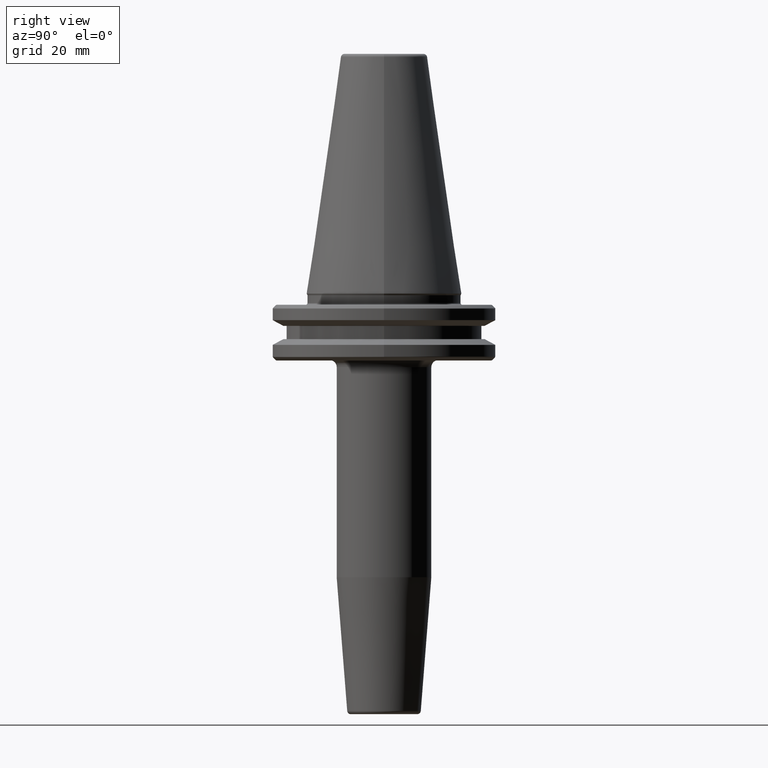
[diagram: clean part render]
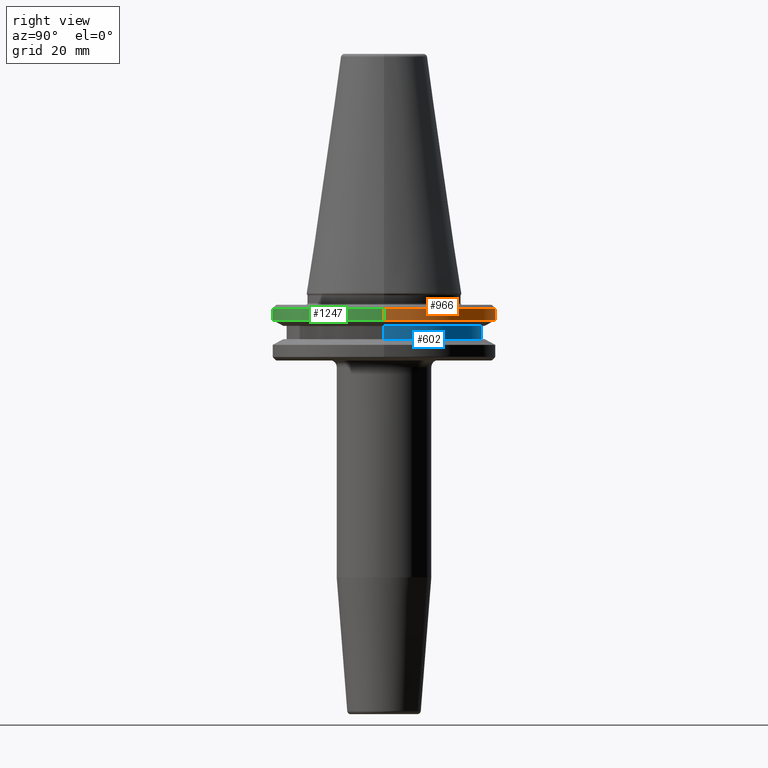
[diagram: same view with three faces highlighted in distinct colors, each labeled with its STEP entity id]
A machine part, right view with three faces highlighted in distinct colors.
Their STEP definitions:

[orange] entity #966 — the highlighted cylindrical surface (partial cylindrical patch) has radius 31.75 mm, axis along (-0, -0, 1).
#32 = CYLINDRICAL_SURFACE ( 'NONE', #369, 31.75000000000000000 ) ;
#98 = DIRECTION ( 'NONE',  ( 1.000000000000000000, 0.0000000000000000000, 0.0000000000000000000 ) ) ;
#104 = DIRECTION ( 'NONE',  ( -0.0000000000000000000, -0.0000000000000000000, 1.000000000000000000 ) ) ;
#105 = CARTESIAN_POINT ( 'NONE',  ( 0.0000000000000000000, 0.0000000000000000000, -4.365685424949250000 ) ) ;
#152 = LINE ( 'NONE', #905, #744 ) ;
#202 = DIRECTION ( 'NONE',  ( 1.000000000000000000, 0.0000000000000000000, 0.0000000000000000000 ) ) ;
#203 = DIRECTION ( 'NONE',  ( 1.000000000000000000, 0.0000000000000000000, 0.0000000000000000000 ) ) ;
#226 = CARTESIAN_POINT ( 'NONE',  ( -31.75000000000000000, 3.888253587292846500E-015, -7.578163357943284800 ) ) ;
#258 = CARTESIAN_POINT ( 'NONE',  ( 0.0000000000000000000, 0.0000000000000000000, 113.5216080541959500 ) ) ;
#266 = LINE ( 'NONE', #623, #1228 ) ;
#276 = EDGE_CURVE ( 'NONE', #390, #1230, #266, .T. ) ;
#291 = ORIENTED_EDGE ( 'NONE', *, *, #756, .F. ) ;
#328 = VERTEX_POINT ( 'NONE', #577 ) ;
#330 = DIRECTION ( 'NONE',  ( -0.0000000000000000000, -0.0000000000000000000, 1.000000000000000000 ) ) ;
#331 = ORIENTED_EDGE ( 'NONE', *, *, #830, .F. ) ;
#369 = AXIS2_PLACEMENT_3D ( 'NONE', #258, #104, #202 ) ;
#390 = VERTEX_POINT ( 'NONE', #226 ) ;
#436 = VERTEX_POINT ( 'NONE', #921 ) ;
#489 = EDGE_CURVE ( 'NONE', #328, #390, #591, .T. ) ;
#540 = CARTESIAN_POINT ( 'NONE',  ( -31.75000000000000000, 3.888253587292846500E-015, -4.365685424949250000 ) ) ;
#577 = CARTESIAN_POINT ( 'NONE',  ( 31.75000000000000000, 0.0000000000000000000, -7.578163357943284800 ) ) ;
#578 = ORIENTED_EDGE ( 'NONE', *, *, #276, .T. ) ;
#591 = CIRCLE ( 'NONE', #1042, 31.75000000000000000 ) ;
#598 = CARTESIAN_POINT ( 'NONE',  ( 0.0000000000000000000, 0.0000000000000000000, -7.578163357943284800 ) ) ;
#623 = CARTESIAN_POINT ( 'NONE',  ( -31.75000000000000000, 3.888253587292846500E-015, 113.5216080541959500 ) ) ;
#694 = DIRECTION ( 'NONE',  ( -0.0000000000000000000, -0.0000000000000000000, 1.000000000000000000 ) ) ;
#744 = VECTOR ( 'NONE', #694, 1000.000000000000000 ) ;
#756 = EDGE_CURVE ( 'NONE', #436, #1230, #769, .T. ) ;
#769 = CIRCLE ( 'NONE', #1139, 31.75000000000000000 ) ;
#783 = DIRECTION ( 'NONE',  ( -0.0000000000000000000, -0.0000000000000000000, 1.000000000000000000 ) ) ;
#798 = DIRECTION ( 'NONE',  ( -0.0000000000000000000, -0.0000000000000000000, 1.000000000000000000 ) ) ;
#819 = FACE_OUTER_BOUND ( 'NONE', #849, .T. ) ;
#830 = EDGE_CURVE ( 'NONE', #328, #436, #152, .T. ) ;
#849 = EDGE_LOOP ( 'NONE', ( #958, #578, #291, #331 ) ) ;
#905 = CARTESIAN_POINT ( 'NONE',  ( 31.75000000000000000, 0.0000000000000000000, 113.5216080541959500 ) ) ;
#921 = CARTESIAN_POINT ( 'NONE',  ( 31.75000000000000000, 0.0000000000000000000, -4.365685424949250000 ) ) ;
#958 = ORIENTED_EDGE ( 'NONE', *, *, #489, .T. ) ;
#966 = ADVANCED_FACE ( 'NONE', ( #819 ), #32, .T. ) ;
#1042 = AXIS2_PLACEMENT_3D ( 'NONE', #598, #783, #98 ) ;
#1139 = AXIS2_PLACEMENT_3D ( 'NONE', #105, #798, #203 ) ;
#1228 = VECTOR ( 'NONE', #330, 1000.000000000000000 ) ;
#1230 = VERTEX_POINT ( 'NONE', #540 ) ;

[blue] entity #602 — the highlighted cylindrical surface (partial cylindrical patch) has radius 28 mm, axis along (-0, -0, 1).
#18 = CARTESIAN_POINT ( 'NONE',  ( 0.0000000000000000000, 0.0000000000000000000, 113.5216080541959500 ) ) ;
#180 = ORIENTED_EDGE ( 'NONE', *, *, #952, .F. ) ;
#211 = DIRECTION ( 'NONE',  ( -0.0000000000000000000, -0.0000000000000000000, 1.000000000000000000 ) ) ;
#235 = LINE ( 'NONE', #320, #498 ) ;
#243 = CARTESIAN_POINT ( 'NONE',  ( 0.0000000000000000000, 0.0000000000000000000, -9.199999999999999300 ) ) ;
#320 = CARTESIAN_POINT ( 'NONE',  ( -28.00000000000000000, 3.429011037612589300E-015, 113.5216080541959500 ) ) ;
#343 = DIRECTION ( 'NONE',  ( -0.0000000000000000000, -0.0000000000000000000, 1.000000000000000000 ) ) ;
#346 = DIRECTION ( 'NONE',  ( 1.000000000000000000, 0.0000000000000000000, 0.0000000000000000000 ) ) ;
#375 = ORIENTED_EDGE ( 'NONE', *, *, #987, .T. ) ;
#379 = AXIS2_PLACEMENT_3D ( 'NONE', #802, #211, #896 ) ;
#414 = DIRECTION ( 'NONE',  ( 1.000000000000000000, 0.0000000000000000000, 0.0000000000000000000 ) ) ;
#415 = ORIENTED_EDGE ( 'NONE', *, *, #947, .F. ) ;
#498 = VECTOR ( 'NONE', #610, 1000.000000000000000 ) ;
#511 = ORIENTED_EDGE ( 'NONE', *, *, #1047, .T. ) ;
#530 = CIRCLE ( 'NONE', #379, 28.00000000000000000 ) ;
#561 = AXIS2_PLACEMENT_3D ( 'NONE', #243, #926, #346 ) ;
#562 = VECTOR ( 'NONE', #343, 1000.000000000000000 ) ;
#589 = CIRCLE ( 'NONE', #561, 28.00000000000000000 ) ;
#602 = ADVANCED_FACE ( 'NONE', ( #1235 ), #686, .T. ) ;
#610 = DIRECTION ( 'NONE',  ( -0.0000000000000000000, -0.0000000000000000000, 1.000000000000000000 ) ) ;
#686 = CYLINDRICAL_SURFACE ( 'NONE', #760, 28.00000000000000000 ) ;
#696 = VERTEX_POINT ( 'NONE', #1238 ) ;
#760 = AXIS2_PLACEMENT_3D ( 'NONE', #18, #999, #414 ) ;
#762 = EDGE_LOOP ( 'NONE', ( #375, #511, #415, #180 ) ) ;
#802 = CARTESIAN_POINT ( 'NONE',  ( 0.0000000000000000000, 0.0000000000000000000, -13.00000000000001100 ) ) ;
#832 = CARTESIAN_POINT ( 'NONE',  ( 28.00000000000000000, 0.0000000000000000000, 113.5216080541959500 ) ) ;
#874 = VERTEX_POINT ( 'NONE', #1201 ) ;
#876 = LINE ( 'NONE', #832, #562 ) ;
#882 = VERTEX_POINT ( 'NONE', #1114 ) ;
#896 = DIRECTION ( 'NONE',  ( 1.000000000000000000, 0.0000000000000000000, 0.0000000000000000000 ) ) ;
#926 = DIRECTION ( 'NONE',  ( -0.0000000000000000000, -0.0000000000000000000, 1.000000000000000000 ) ) ;
#947 = EDGE_CURVE ( 'NONE', #1128, #696, #589, .T. ) ;
#952 = EDGE_CURVE ( 'NONE', #874, #1128, #876, .T. ) ;
#987 = EDGE_CURVE ( 'NONE', #874, #882, #530, .T. ) ;
#999 = DIRECTION ( 'NONE',  ( -0.0000000000000000000, -0.0000000000000000000, 1.000000000000000000 ) ) ;
#1008 = CARTESIAN_POINT ( 'NONE',  ( 28.00000000000000000, 0.0000000000000000000, -9.199999999999999300 ) ) ;
#1047 = EDGE_CURVE ( 'NONE', #882, #696, #235, .T. ) ;
#1114 = CARTESIAN_POINT ( 'NONE',  ( -28.00000000000000000, 3.429011037612589300E-015, -13.00000000000001100 ) ) ;
#1128 = VERTEX_POINT ( 'NONE', #1008 ) ;
#1201 = CARTESIAN_POINT ( 'NONE',  ( 28.00000000000000000, 0.0000000000000000000, -13.00000000000001100 ) ) ;
#1235 = FACE_OUTER_BOUND ( 'NONE', #762, .T. ) ;
#1238 = CARTESIAN_POINT ( 'NONE',  ( -28.00000000000000000, 3.429011037612589300E-015, -9.199999999999999300 ) ) ;

[green] entity #1247 — the highlighted cylindrical surface (partial cylindrical patch) has radius 31.75 mm, axis along (-0, -0, 1).
#50 = CARTESIAN_POINT ( 'NONE',  ( 0.0000000000000000000, 0.0000000000000000000, 113.5216080541959500 ) ) ;
#67 = CIRCLE ( 'NONE', #126, 31.75000000000000000 ) ;
#115 = ORIENTED_EDGE ( 'NONE', *, *, #830, .T. ) ;
#119 = ORIENTED_EDGE ( 'NONE', *, *, #360, .T. ) ;
#122 = ORIENTED_EDGE ( 'NONE', *, *, #1196, .F. ) ;
#126 = AXIS2_PLACEMENT_3D ( 'NONE', #597, #799, #1167 ) ;
#152 = LINE ( 'NONE', #905, #744 ) ;
#226 = CARTESIAN_POINT ( 'NONE',  ( -31.75000000000000000, 3.888253587292846500E-015, -7.578163357943284800 ) ) ;
#248 = EDGE_LOOP ( 'NONE', ( #653, #119, #115, #122 ) ) ;
#266 = LINE ( 'NONE', #623, #1228 ) ;
#276 = EDGE_CURVE ( 'NONE', #390, #1230, #266, .T. ) ;
#288 = AXIS2_PLACEMENT_3D ( 'NONE', #50, #1214, #448 ) ;
#328 = VERTEX_POINT ( 'NONE', #577 ) ;
#330 = DIRECTION ( 'NONE',  ( -0.0000000000000000000, -0.0000000000000000000, 1.000000000000000000 ) ) ;
#360 = EDGE_CURVE ( 'NONE', #390, #328, #67, .T. ) ;
#390 = VERTEX_POINT ( 'NONE', #226 ) ;
#436 = VERTEX_POINT ( 'NONE', #921 ) ;
#444 = DIRECTION ( 'NONE',  ( -0.0000000000000000000, -0.0000000000000000000, 1.000000000000000000 ) ) ;
#448 = DIRECTION ( 'NONE',  ( 1.000000000000000000, 0.0000000000000000000, 0.0000000000000000000 ) ) ;
#505 = CIRCLE ( 'NONE', #903, 31.75000000000000000 ) ;
#540 = CARTESIAN_POINT ( 'NONE',  ( -31.75000000000000000, 3.888253587292846500E-015, -4.365685424949250000 ) ) ;
#577 = CARTESIAN_POINT ( 'NONE',  ( 31.75000000000000000, 0.0000000000000000000, -7.578163357943284800 ) ) ;
#597 = CARTESIAN_POINT ( 'NONE',  ( 0.0000000000000000000, 0.0000000000000000000, -7.578163357943284800 ) ) ;
#623 = CARTESIAN_POINT ( 'NONE',  ( -31.75000000000000000, 3.888253587292846500E-015, 113.5216080541959500 ) ) ;
#653 = ORIENTED_EDGE ( 'NONE', *, *, #276, .F. ) ;
#694 = DIRECTION ( 'NONE',  ( -0.0000000000000000000, -0.0000000000000000000, 1.000000000000000000 ) ) ;
#744 = VECTOR ( 'NONE', #694, 1000.000000000000000 ) ;
#799 = DIRECTION ( 'NONE',  ( -0.0000000000000000000, -0.0000000000000000000, 1.000000000000000000 ) ) ;
#830 = EDGE_CURVE ( 'NONE', #328, #436, #152, .T. ) ;
#903 = AXIS2_PLACEMENT_3D ( 'NONE', #1023, #444, #1119 ) ;
#905 = CARTESIAN_POINT ( 'NONE',  ( 31.75000000000000000, 0.0000000000000000000, 113.5216080541959500 ) ) ;
#921 = CARTESIAN_POINT ( 'NONE',  ( 31.75000000000000000, 0.0000000000000000000, -4.365685424949250000 ) ) ;
#1023 = CARTESIAN_POINT ( 'NONE',  ( 0.0000000000000000000, 0.0000000000000000000, -4.365685424949250000 ) ) ;
#1119 = DIRECTION ( 'NONE',  ( 1.000000000000000000, 0.0000000000000000000, 0.0000000000000000000 ) ) ;
#1146 = CYLINDRICAL_SURFACE ( 'NONE', #288, 31.75000000000000000 ) ;
#1167 = DIRECTION ( 'NONE',  ( 1.000000000000000000, 0.0000000000000000000, 0.0000000000000000000 ) ) ;
#1196 = EDGE_CURVE ( 'NONE', #1230, #436, #505, .T. ) ;
#1214 = DIRECTION ( 'NONE',  ( -0.0000000000000000000, -0.0000000000000000000, 1.000000000000000000 ) ) ;
#1215 = FACE_OUTER_BOUND ( 'NONE', #248, .T. ) ;
#1228 = VECTOR ( 'NONE', #330, 1000.000000000000000 ) ;
#1230 = VERTEX_POINT ( 'NONE', #540 ) ;
#1247 = ADVANCED_FACE ( 'NONE', ( #1215 ), #1146, .T. ) ;